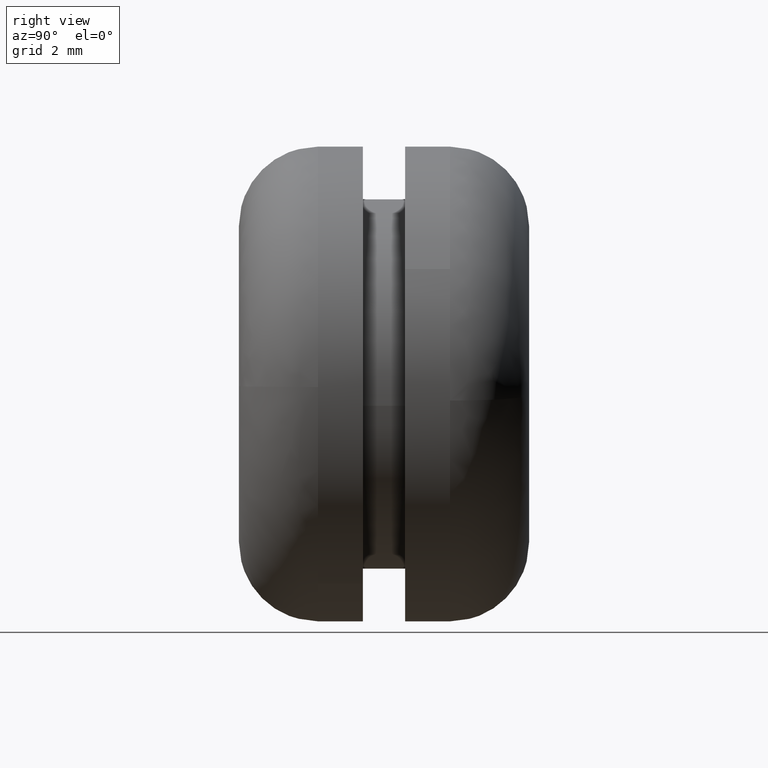
[diagram: clean part render]
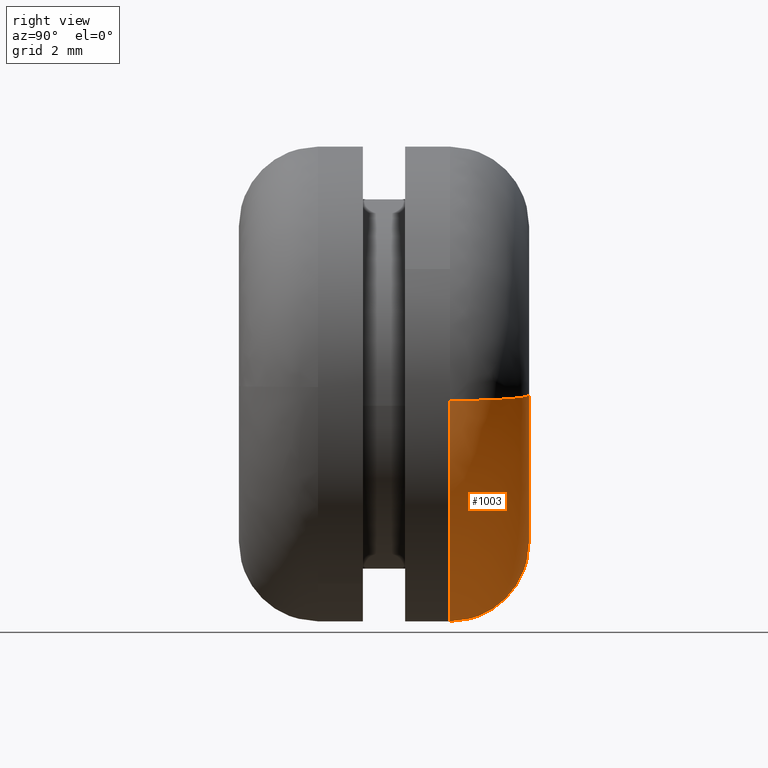
[diagram: same view with one face highlighted and labeled with its STEP entity id]
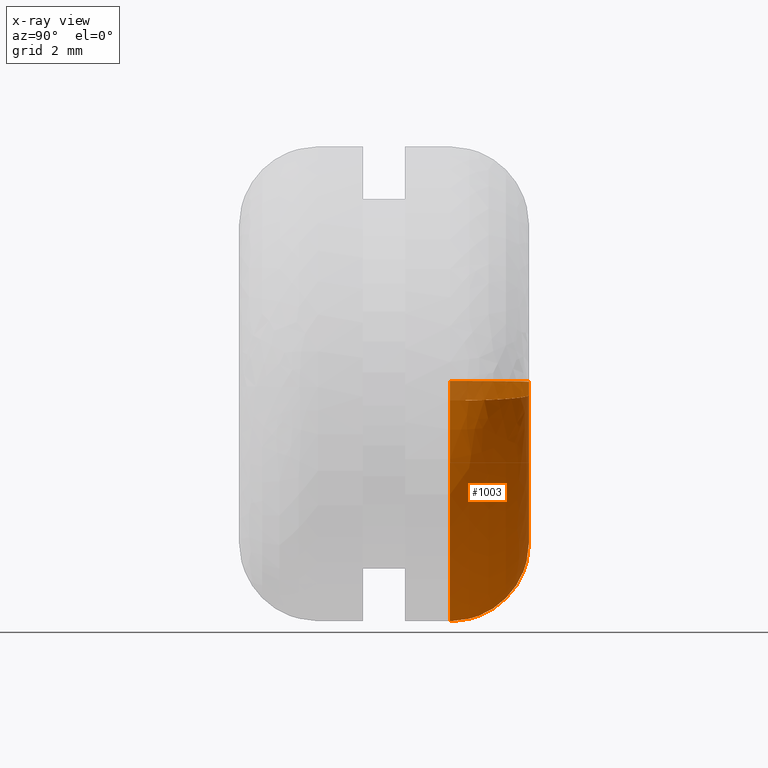
[diagram: x-ray of the same camera — body ghosted, the highlighted face saturated]
A machine part, right view. The second image highlights one B-rep face of the part: STEP entity #1003.
The next image is the same camera in x-ray: the body ghosted, the highlighted face saturated — about 8% of this face is hidden behind the body in this view.
In plain terms, the highlighted face is a freeform B-spline surface patch.
Its self-contained STEP definition (entity closure, byte-faithful):
#563=CARTESIAN_POINT('',(4.489045532640584,3.999997920107929,-0.313799626917650));
#564=VERTEX_POINT('',#563);
#614=CARTESIAN_POINT('',(-4.499644736732964,3.999997899728951,0.056544169954152));
#615=VERTEX_POINT('',#614);
#629=CARTESIAN_POINT('',(0.0,4.0,-4.500000000000000));
#630=VERTEX_POINT('',#629);
#631=CARTESIAN_POINT('',(-4.499644736732964,3.999997899728951,0.056544169954152));
#632=CARTESIAN_POINT('',(-4.499999999996064,3.999997906244491,0.028273201024791));
#633=CARTESIAN_POINT('',(-4.499999999996077,3.999997912842423,-4.880959E-014));
#634=CARTESIAN_POINT('',(-4.499999999998050,3.999998962977948,-4.500000000000025));
#635=CARTESIAN_POINT('',(0.0,4.0,-4.500000000000000));
#643=(BOUNDED_CURVE()B_SPLINE_CURVE(2,(#631,#632,#633,#634,#635),.UNSPECIFIED.,.F.,.U.)B_SPLINE_CURVE_WITH_KNOTS((3,2,3),(0.747784413547825,0.750000000000000,1.0),.UNSPECIFIED.)CURVE()GEOMETRIC_REPRESENTATION_ITEM()RATIONAL_B_SPLINE_CURVE((0.994854566373780,0.997404279009852,1.0,0.707106781186547,1.0))REPRESENTATION_ITEM(''));
#644=EDGE_CURVE('',#615,#630,#643,.T.);
#646=CARTESIAN_POINT('',(0.0,4.0,-4.500000000000000));
#647=CARTESIAN_POINT('',(4.196415817544660,3.999998960053965,-4.499999999999901));
#648=CARTESIAN_POINT('',(4.489045532640584,3.999997920107929,-0.313799626917650));
#656=(BOUNDED_CURVE()B_SPLINE_CURVE(2,(#646,#647,#648),.UNSPECIFIED.,.F.,.U.)B_SPLINE_CURVE_WITH_KNOTS((3,3),(0.0,0.237833686733268),.UNSPECIFIED.)CURVE()GEOMETRIC_REPRESENTATION_ITEM()RATIONAL_B_SPLINE_CURVE((1.0,0.721360503801691,0.972879876806137))REPRESENTATION_ITEM(''));
#657=EDGE_CURVE('',#630,#564,#656,.T.);
#879=CARTESIAN_POINT('',(2.992697021625538,5.500000000000000,-0.209199754758854));
#880=VERTEX_POINT('',#879);
#881=CARTESIAN_POINT('',(2.992697021625538,5.500000000000000,-0.209199754758854));
#882=CARTESIAN_POINT('',(4.489047607112319,5.499999999787488,-0.313799777127225));
#883=CARTESIAN_POINT('',(4.489045532640584,3.999997920107930,-0.313799626917650));
#891=(BOUNDED_CURVE()B_SPLINE_CURVE(2,(#881,#882,#883),.UNSPECIFIED.,.F.,.U.)B_SPLINE_CURVE_WITH_KNOTS((3,3),(-1.734750791511190,-0.265247767538196),.UNSPECIFIED.)CURVE()GEOMETRIC_REPRESENTATION_ITEM()RATIONAL_B_SPLINE_CURVE((0.869031711824262,0.614497966995987,0.869032211001072))REPRESENTATION_ITEM(''));
#892=EDGE_CURVE('',#880,#564,#891,.T.);
#911=CARTESIAN_POINT('',(-2.999763132634667,5.500000000000000,0.037698119653452));
#912=VERTEX_POINT('',#911);
#926=CARTESIAN_POINT('',(-2.999763132634667,5.500000000000000,0.037698119653452));
#927=CARTESIAN_POINT('',(-4.499646817920845,5.499999999953481,0.056545701108141));
#928=CARTESIAN_POINT('',(-4.499644736732964,3.999997899728950,0.056544169954152));
#936=(BOUNDED_CURVE()B_SPLINE_CURVE(2,(#926,#927,#928),.UNSPECIFIED.,.F.,.U.)B_SPLINE_CURVE_WITH_KNOTS((3,3),(-1.734750791626176,-0.265247753421064),.UNSPECIFIED.)CURVE()GEOMETRIC_REPRESENTATION_ITEM()RATIONAL_B_SPLINE_CURVE((0.889029723565021,0.628638688415950,0.889030239191080))REPRESENTATION_ITEM(''));
#937=EDGE_CURVE('',#912,#615,#936,.T.);
#944=CARTESIAN_POINT('',(-2.895465618038770,5.496369042212746,0.036387409434032));
#945=CARTESIAN_POINT('',(-2.931853027472802,5.496369042212747,-2.859078208604738));
#946=CARTESIAN_POINT('',(-0.036387409434032,5.496369042212746,-2.895465618038770));
#947=CARTESIAN_POINT('',(2.697955507075307,5.496369042212745,-2.929828193306877));
#948=CARTESIAN_POINT('',(2.888645185621174,5.496369042212747,-0.201926175612705));
#949=CARTESIAN_POINT('',(-4.615943800738794,5.616305991276828,0.058008714023595));
#950=CARTESIAN_POINT('',(-4.673952514762390,5.616305991276830,-4.557935086715197));
#951=CARTESIAN_POINT('',(-0.058008714023596,5.616305991276828,-4.615943800738794));
#952=CARTESIAN_POINT('',(4.301073692592747,5.616305991276829,-4.670724529371197));
#953=CARTESIAN_POINT('',(4.605070685015980,5.616305991276830,-0.321910186990132));
#954=CARTESIAN_POINT('',(-4.496013879801319,3.895692126334189,0.056501550854620));
#955=CARTESIAN_POINT('',(-4.552515430655941,3.895692126334190,-4.439512328946699));
#956=CARTESIAN_POINT('',(-0.056501550854621,3.895692126334189,-4.496013879801319));
#957=CARTESIAN_POINT('',(4.189324622377392,3.895692126334189,-4.549371313710610));
#958=CARTESIAN_POINT('',(4.485423265765111,3.895692126334190,-0.313546423274353));
#966=(BOUNDED_SURFACE()B_SPLINE_SURFACE(2,2,((#944,#949,#954),(#945,#950,#955),(#946,#951,#956),(#947,#952,#957),(#948,#953,#958)),.UNSPECIFIED.,.F.,.F.,.U.)B_SPLINE_SURFACE_WITH_KNOTS((3,2,3),(3,3),(0.0,7.449827909619574,14.601662702854370),(0.0,2.733563647256300),.UNSPECIFIED.)GEOMETRIC_REPRESENTATION_ITEM()RATIONAL_B_SPLINE_SURFACE(((0.916342124254046,0.601326249309697,0.916342716714607),(0.647951729946922,0.425201868592359,0.647952148879802),(0.916342124254046,0.601326249309697,0.916342716714607),(0.658687345719207,0.432246843821053,0.658687771593194),(0.895729741971259,0.587799896870606,0.895730321104894)))REPRESENTATION_ITEM('')SURFACE());
#967=ORIENTED_EDGE('',*,*,#657,.F.);
#968=ORIENTED_EDGE('',*,*,#644,.F.);
#969=ORIENTED_EDGE('',*,*,#937,.F.);
#970=CARTESIAN_POINT('',(0.0,5.500000000000000,-3.0));
#971=VERTEX_POINT('',#970);
#972=CARTESIAN_POINT('',(-2.999763132634667,5.500000000000000,0.037698119653452));
#973=CARTESIAN_POINT('',(-3.000000000000001,5.500000000000000,0.018849803978773));
#974=CARTESIAN_POINT('',(-3.0,5.500000000000000,-3.061516E-016));
#975=CARTESIAN_POINT('',(-3.0,5.500000000000001,-3.0));
#976=CARTESIAN_POINT('',(0.0,5.500000000000000,-3.0));
#984=(BOUNDED_CURVE()B_SPLINE_CURVE(2,(#972,#973,#974,#975,#976),.UNSPECIFIED.,.F.,.U.)B_SPLINE_CURVE_WITH_KNOTS((3,2,3),(0.747784295921364,0.750000000000000,1.0),.UNSPECIFIED.)CURVE()GEOMETRIC_REPRESENTATION_ITEM()RATIONAL_B_SPLINE_CURVE((0.994854295643175,0.997404141201881,1.0,0.707106781186548,1.0))REPRESENTATION_ITEM(''));
#985=EDGE_CURVE('',#912,#971,#984,.T.);
#986=ORIENTED_EDGE('',*,*,#985,.T.);
#987=CARTESIAN_POINT('',(0.0,5.500000000000000,-3.0));
#988=CARTESIAN_POINT('',(2.797610541752784,5.499999999999999,-3.000000000000000));
#989=CARTESIAN_POINT('',(2.992697021625538,5.500000000000000,-0.209199754758854));
#997=(BOUNDED_CURVE()B_SPLINE_CURVE(2,(#987,#988,#989),.UNSPECIFIED.,.F.,.U.)B_SPLINE_CURVE_WITH_KNOTS((3,3),(0.0,0.237833686532248),.UNSPECIFIED.)CURVE()GEOMETRIC_REPRESENTATION_ITEM()RATIONAL_B_SPLINE_CURVE((1.0,0.721360504037201,0.972879876380961))REPRESENTATION_ITEM(''));
#998=EDGE_CURVE('',#971,#880,#997,.T.);
#999=ORIENTED_EDGE('',*,*,#998,.T.);
#1000=ORIENTED_EDGE('',*,*,#892,.T.);
#1001=EDGE_LOOP('',(#967,#968,#969,#986,#999,#1000));
#1002=FACE_OUTER_BOUND('',#1001,.T.);
#1003=ADVANCED_FACE('',(#1002),#966,.T.);